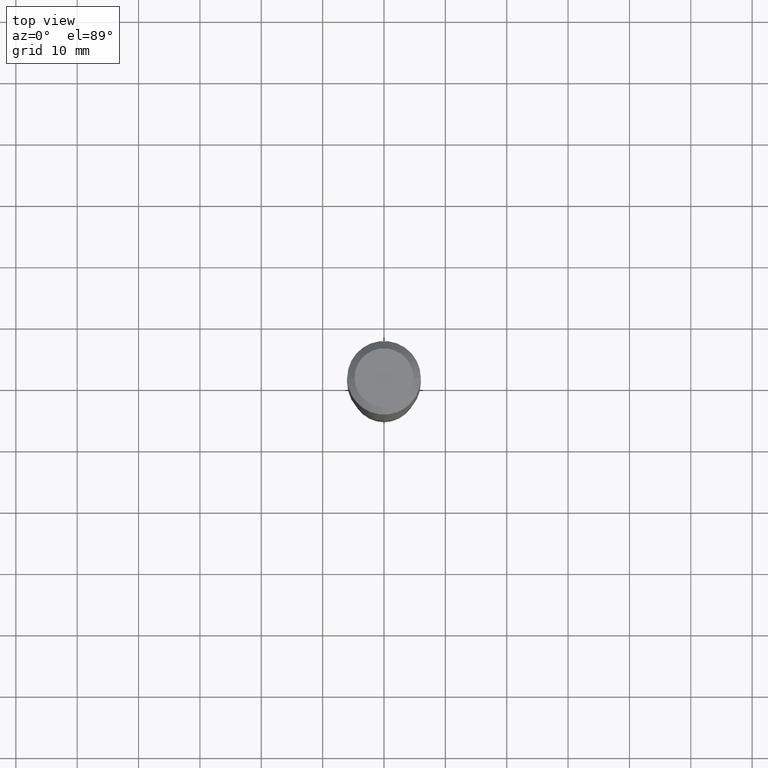
[diagram: clean part render]
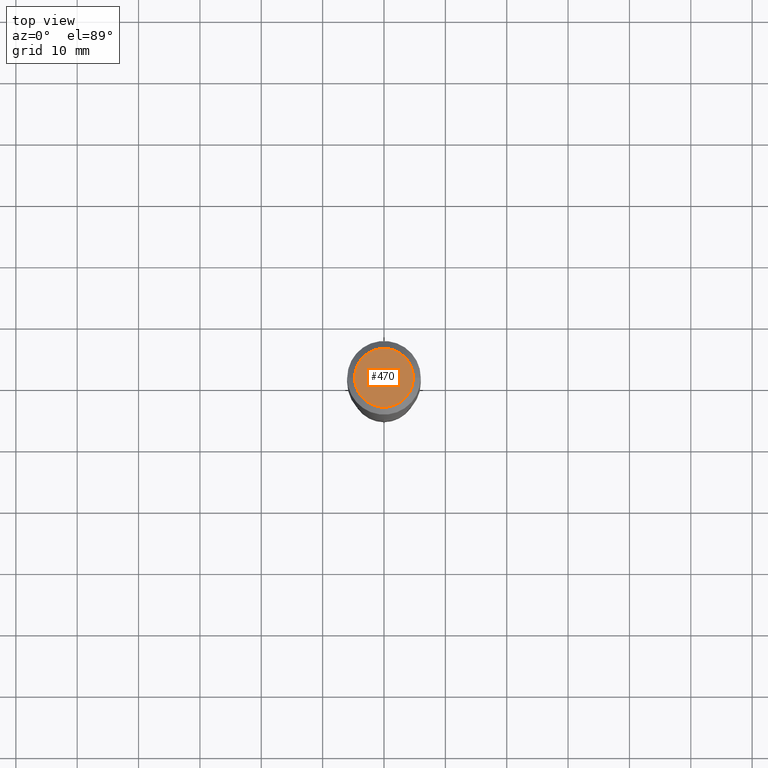
[diagram: same view with one face highlighted and labeled with its STEP entity id]
A machine part, top view. The second image highlights one B-rep face of the part: STEP entity #470.
In plain terms, the highlighted planar face has unit normal (0, -0, -1).
Its self-contained STEP definition (entity closure, byte-faithful):
#27 = CARTESIAN_POINT ( 'NONE',  ( -0.1889600000000000168, 1.401969416799070942E-15, 3.855188123706346622E-18 ) ) ;
#81 = AXIS2_PLACEMENT_3D ( 'NONE', #322, #471, #248 ) ;
#101 = CARTESIAN_POINT ( 'NONE',  ( -4.713871149261273121E-47, 6.730158695841826722E-33, 1.927594061857931128E-18 ) ) ;
#140 = DIRECTION ( 'NONE',  ( 2.438088387897960049E-29, -3.491481338843145188E-15, -1.000000000000000000 ) ) ;
#141 = ORIENTED_EDGE ( 'NONE', *, *, #435, .T. ) ;
#151 = CIRCLE ( 'NONE', #437, 0.1889600000000000168 ) ;
#189 = CARTESIAN_POINT ( 'NONE',  ( -9.427742298522546243E-47, 1.346031739168365344E-32, 3.855188123715862256E-18 ) ) ;
#221 = EDGE_LOOP ( 'NONE', ( #141, #296 ) ) ;
#231 = EDGE_CURVE ( 'NONE', #302, #372, #234, .T. ) ;
#234 = CIRCLE ( 'NONE', #81, 0.1889600000000000168 ) ;
#248 = DIRECTION ( 'NONE',  ( 1.000000000000000000, -6.982962677686266711E-15, 4.876185090822587894E-29 ) ) ;
#256 = DIRECTION ( 'NONE',  ( -1.000000000000000000, 6.982962677686265922E-15, -4.876176775795935793E-29 ) ) ;
#263 = FACE_OUTER_BOUND ( 'NONE', #221, .T. ) ;
#267 = PLANE ( 'NONE',  #330 ) ;
#288 = CARTESIAN_POINT ( 'NONE',  ( 0.1889600000000000168, -1.540873453589747738E-15, 3.855188123725863225E-18 ) ) ;
#296 = ORIENTED_EDGE ( 'NONE', *, *, #231, .T. ) ;
#302 = VERTEX_POINT ( 'NONE', #288 ) ;
#322 = CARTESIAN_POINT ( 'NONE',  ( -9.427742298522546243E-47, 1.346031739168365344E-32, 3.855188123715862256E-18 ) ) ;
#330 = AXIS2_PLACEMENT_3D ( 'NONE', #101, #140, #256 ) ;
#372 = VERTEX_POINT ( 'NONE', #27 ) ;
#373 = DIRECTION ( 'NONE',  ( -2.445468806185136597E-29, 3.491481338843145583E-15, 1.000000000000000000 ) ) ;
#375 = DIRECTION ( 'NONE',  ( 1.000000000000000000, -6.982962677686266711E-15, 4.876185090822587894E-29 ) ) ;
#435 = EDGE_CURVE ( 'NONE', #372, #302, #151, .T. ) ;
#437 = AXIS2_PLACEMENT_3D ( 'NONE', #189, #373, #375 ) ;
#470 = ADVANCED_FACE ( 'NONE', ( #263 ), #267, .F. ) ;
#471 = DIRECTION ( 'NONE',  ( -2.445468806185136597E-29, 3.491481338843145583E-15, 1.000000000000000000 ) ) ;